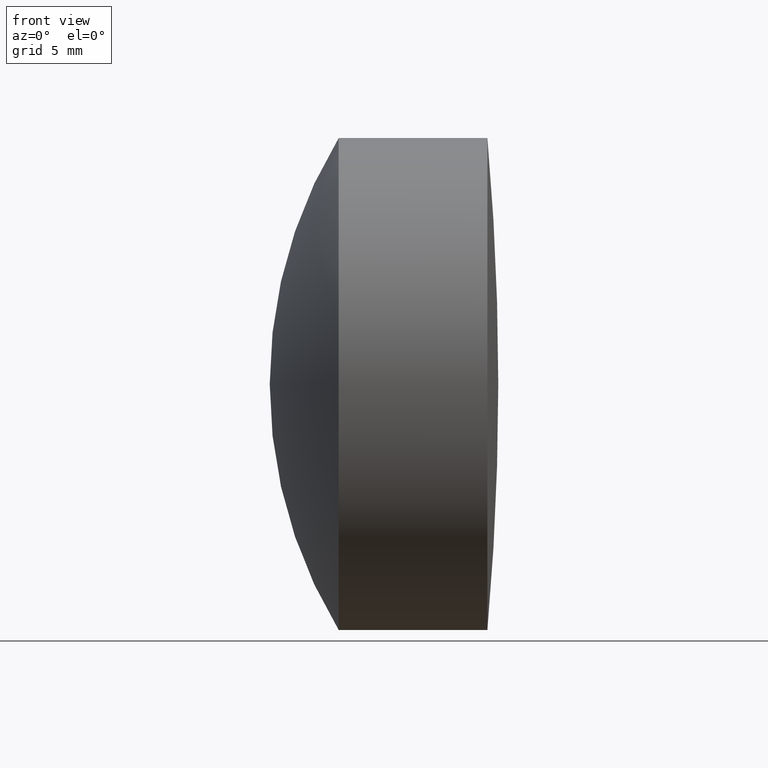
[diagram: clean part render]
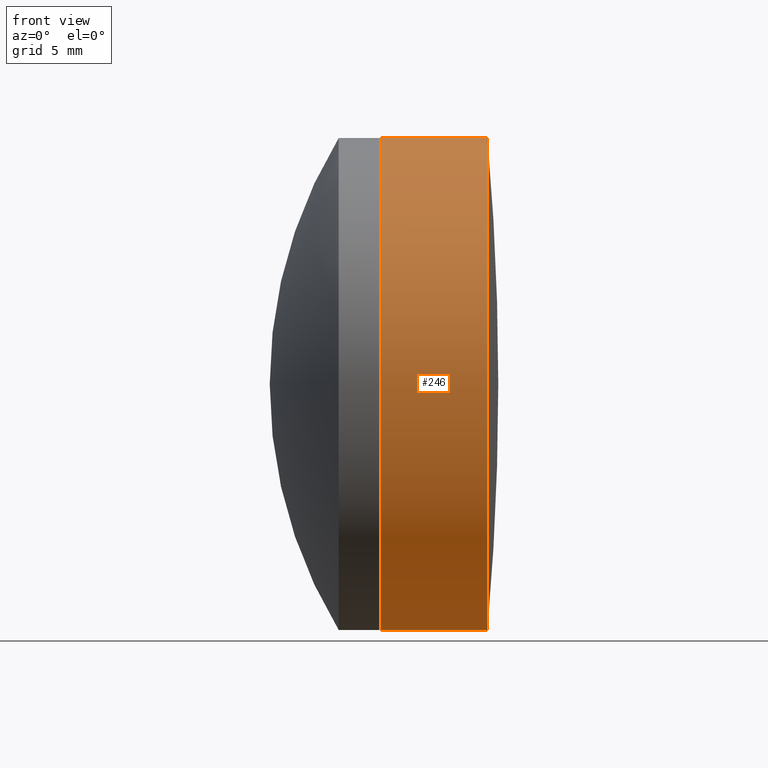
[diagram: same view with one face highlighted and labeled with its STEP entity id]
A machine part, front view. The second image highlights one B-rep face of the part: STEP entity #246.
In plain terms, the highlighted cylindrical surface (partial cylindrical patch) has radius 12.7 mm, axis along (-1, -0, -0).
Its self-contained STEP definition (entity closure, byte-faithful):
#11 = EDGE_CURVE ( 'NONE', #28, #26, #267, .T. ) ;
#17 = AXIS2_PLACEMENT_3D ( 'NONE', #109, #200, #213 ) ;
#26 = VERTEX_POINT ( 'NONE', #223 ) ;
#28 = VERTEX_POINT ( 'NONE', #254 ) ;
#46 = VERTEX_POINT ( 'NONE', #89 ) ;
#48 = CARTESIAN_POINT ( 'NONE',  ( 25.16764040434280100, -1.555301434917138400E-015, 12.69999999999999900 ) ) ;
#52 = AXIS2_PLACEMENT_3D ( 'NONE', #188, #141, #143 ) ;
#56 = EDGE_CURVE ( 'NONE', #26, #338, #129, .T. ) ;
#69 = VECTOR ( 'NONE', #116, 1000.000000000000000 ) ;
#72 = CARTESIAN_POINT ( 'NONE',  ( -0.5519199926577972300, 1.555301434917138200E-015, -12.69999999999999800 ) ) ;
#89 = CARTESIAN_POINT ( 'NONE',  ( 30.65879745129665300, -1.555301434917133500E-015, 12.69999999999995800 ) ) ;
#95 = CYLINDRICAL_SURFACE ( 'NONE', #17, 12.69999999999999800 ) ;
#106 = CIRCLE ( 'NONE', #151, 12.69999999999999800 ) ;
#109 = CARTESIAN_POINT ( 'NONE',  ( -0.5519199926577972300, 0.0000000000000000000, 0.0000000000000000000 ) ) ;
#112 = LINE ( 'NONE', #322, #166 ) ;
#116 = DIRECTION ( 'NONE',  ( -1.000000000000000000, -0.0000000000000000000, -0.0000000000000000000 ) ) ;
#128 = EDGE_CURVE ( 'NONE', #28, #46, #106, .T. ) ;
#129 = CIRCLE ( 'NONE', #52, 12.69999999999999800 ) ;
#141 = DIRECTION ( 'NONE',  ( -1.000000000000000000, -0.0000000000000000000, -0.0000000000000000000 ) ) ;
#143 = DIRECTION ( 'NONE',  ( 0.0000000000000000000, 0.0000000000000000000, 1.000000000000000000 ) ) ;
#148 = EDGE_CURVE ( 'NONE', #46, #338, #112, .T. ) ;
#151 = AXIS2_PLACEMENT_3D ( 'NONE', #195, #298, #283 ) ;
#166 = VECTOR ( 'NONE', #241, 1000.000000000000000 ) ;
#173 = ORIENTED_EDGE ( 'NONE', *, *, #56, .F. ) ;
#188 = CARTESIAN_POINT ( 'NONE',  ( 25.16764040434280100, 0.0000000000000000000, 0.0000000000000000000 ) ) ;
#191 = ORIENTED_EDGE ( 'NONE', *, *, #148, .T. ) ;
#195 = CARTESIAN_POINT ( 'NONE',  ( 30.65879745129665000, 0.0000000000000000000, 0.0000000000000000000 ) ) ;
#200 = DIRECTION ( 'NONE',  ( -1.000000000000000000, -0.0000000000000000000, -0.0000000000000000000 ) ) ;
#203 = ORIENTED_EDGE ( 'NONE', *, *, #11, .F. ) ;
#213 = DIRECTION ( 'NONE',  ( 0.0000000000000000000, 0.0000000000000000000, 1.000000000000000000 ) ) ;
#220 = EDGE_LOOP ( 'NONE', ( #203, #339, #191, #173 ) ) ;
#223 = CARTESIAN_POINT ( 'NONE',  ( 25.16764040434280100, 0.0000000000000000000, -12.69999999999999900 ) ) ;
#231 = FACE_OUTER_BOUND ( 'NONE', #220, .T. ) ;
#241 = DIRECTION ( 'NONE',  ( -1.000000000000000000, -0.0000000000000000000, -0.0000000000000000000 ) ) ;
#246 = ADVANCED_FACE ( 'NONE', ( #231 ), #95, .T. ) ;
#254 = CARTESIAN_POINT ( 'NONE',  ( 30.65879745129665300, 0.0000000000000000000, -12.69999999999995800 ) ) ;
#267 = LINE ( 'NONE', #72, #69 ) ;
#283 = DIRECTION ( 'NONE',  ( 0.0000000000000000000, 0.0000000000000000000, 1.000000000000000000 ) ) ;
#298 = DIRECTION ( 'NONE',  ( -1.000000000000000000, -0.0000000000000000000, -0.0000000000000000000 ) ) ;
#322 = CARTESIAN_POINT ( 'NONE',  ( -0.5519199926577972300, 0.0000000000000000000, 12.69999999999999800 ) ) ;
#338 = VERTEX_POINT ( 'NONE', #48 ) ;
#339 = ORIENTED_EDGE ( 'NONE', *, *, #128, .T. ) ;